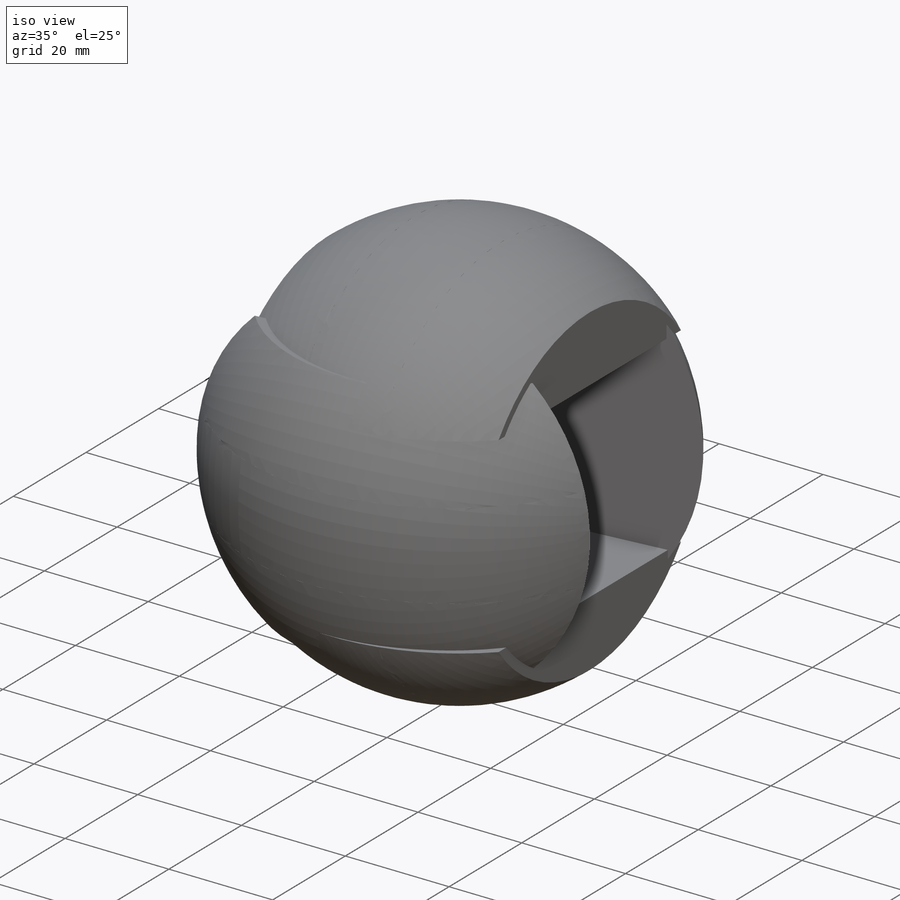
[diagram: iso view]
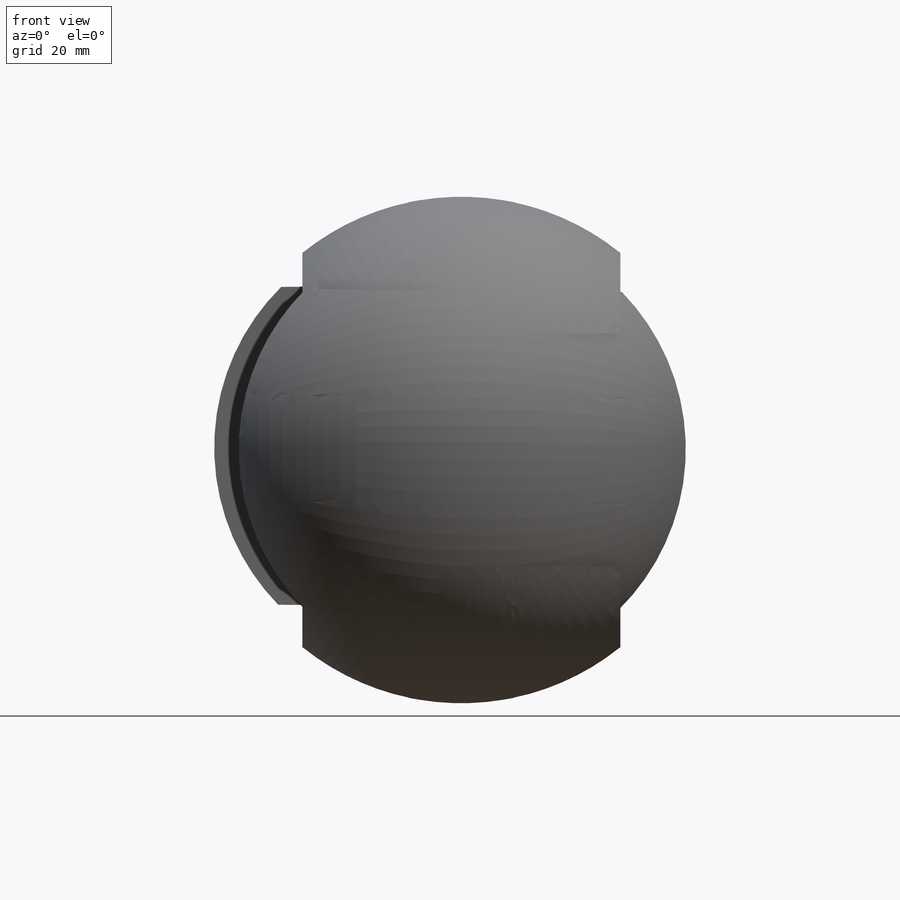
[diagram: front view]
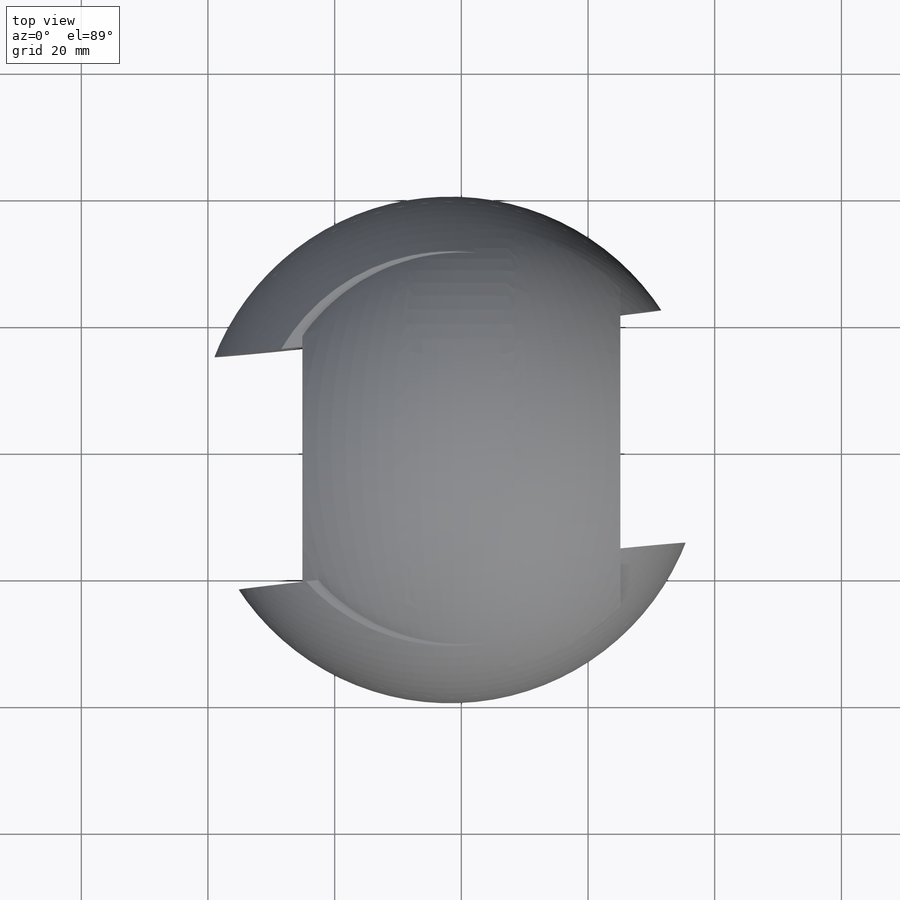
[diagram: top view]
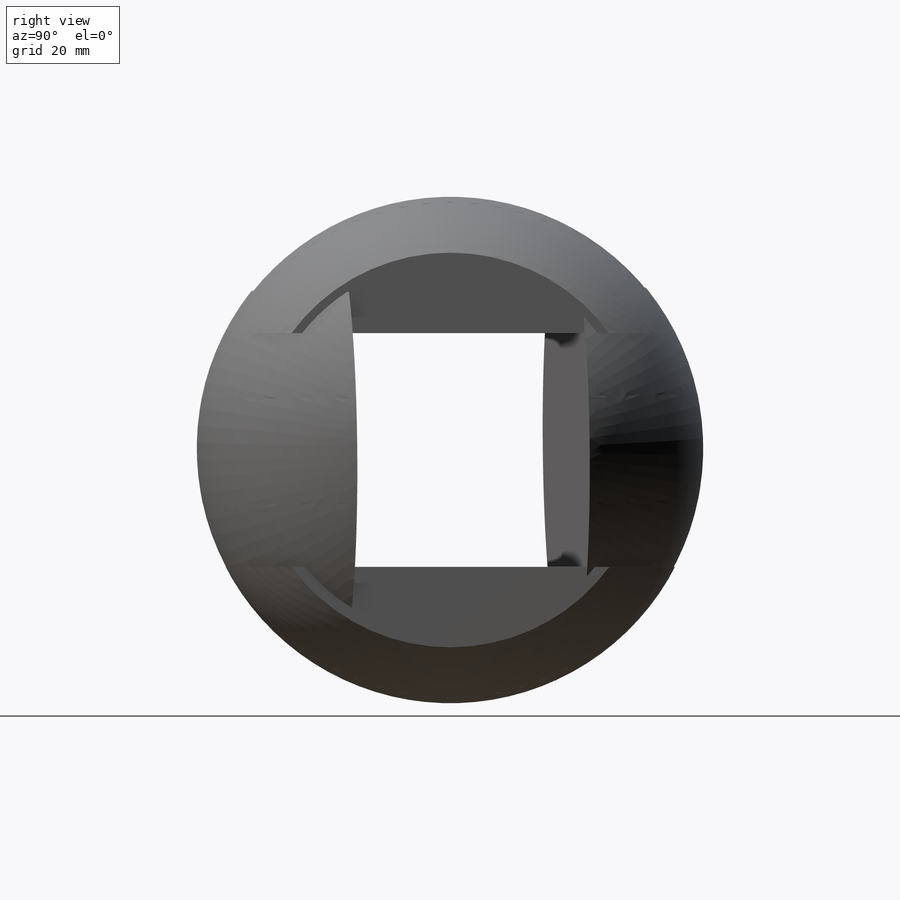
[diagram: right view]
SOLIDWORKS PART (.sldprt)
format: sldprt  version: not decoded by parser v0  size: 299,008 bytes
history: native  units: mm
features: sketch x4, plane x3, move_body x2, material x1, revolve x1, cut_revolve x1, cut_extrude x1 (+13 scaffold rows collapsed)
feature tree (26):
  scaffold x13  (default folders/planes/origin — collapsed)
  material  "Materiał <nieokreślony>"
  plane  "Płaszczyzna przednia"
  plane  "Płaszczyzna górna"
  plane  "Płaszczyzna prawa"
  sketch  "Szkic1"  dims[D1=80.0mm]
  revolve  "Obrót1"  Angle=360deg
  sketch  "Szkic2"
  cut_revolve  "Wycięcie-obrót1"  Angle=360deg
  sketch  "Szkic3"
  cut_extrude  "Wytnij-wyciągnięcie1"  Depth=20mm
  sketch  "Szkic4"  dims[D1=16.73mm D2=16.73mm]
  move_body  "Obiekt-Przenieś/Kopiuj1"
  move_body  "Obiekt-Przenieś/Kopiuj2"
decode coverage: 5 of 9 modeling features carry decoded parameters
note: suppression state not decoded; provenance and decode notes live in map.json
